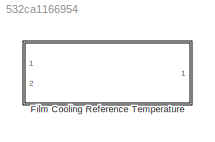
MODEL slx_532ca1166954
KIND library
CONFIG AbsTol = auto
CONFIG FixedStep = auto
CONFIG MaxStep = auto
CONFIG MinStep = auto
CONFIG RelTol = 1e-3
CONFIG SampleTimeConstraint = Unconstrained
CONFIG Solver = ode45
CONFIG SolverMode = Auto
CONFIG SolverName = ode45
CONFIG StartTime = 0.0
CONFIG StopTime = 10.0
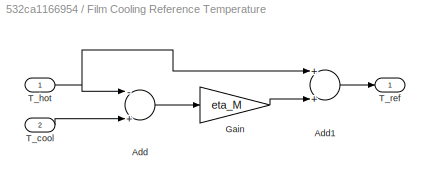
BLOCK [SubSystem] Film Cooling Reference Temperature
  Ports = [2, 1]
  RequestExecContextInheritance = off
BLOCK [Sum] Film Cooling Reference Temperature/Add
  InputSameDT = off
  Inputs = -+
  OutDataTypeStr = Inherit: Inherit via internal rule
  Ports = [2, 1]
  SaturateOnIntegerOverflow = off
BLOCK [Sum] Film Cooling Reference Temperature/Add1
  InputSameDT = off
  OutDataTypeStr = Inherit: Inherit via internal rule
  Ports = [2, 1]
  SaturateOnIntegerOverflow = off
BLOCK [Gain] Film Cooling Reference Temperature/Gain
  Gain = eta_M
  OutDataTypeStr = Inherit: Inherit via internal rule
  ParamDataTypeStr = Inherit: Inherit via internal rule
  SaturateOnIntegerOverflow = off
BLOCK [Inport] Film Cooling Reference Temperature/T_cool
  IconDisplay = Port number
  Port = 2
BLOCK [Inport] Film Cooling Reference Temperature/T_hot
  IconDisplay = Port number
BLOCK [Outport] Film Cooling Reference Temperature/T_ref
  IconDisplay = Port number
LINE Film Cooling Reference Temperature/Add1:1 -> Film Cooling Reference Temperature/T_ref:1
LINE Film Cooling Reference Temperature/Add:1 -> Film Cooling Reference Temperature/Gain:1
LINE Film Cooling Reference Temperature/Gain:1 -> Film Cooling Reference Temperature/Add1:2
LINE Film Cooling Reference Temperature/T_cool:1 -> Film Cooling Reference Temperature/Add:2
NET Film Cooling Reference Temperature/T_hot:1 -> Film Cooling Reference Temperature/Add1:1, Film Cooling Reference Temperature/Add:1
note: NET lines group one-source signal fan-out (src -> all destinations, sorted); 1:1 wires keep LINE
